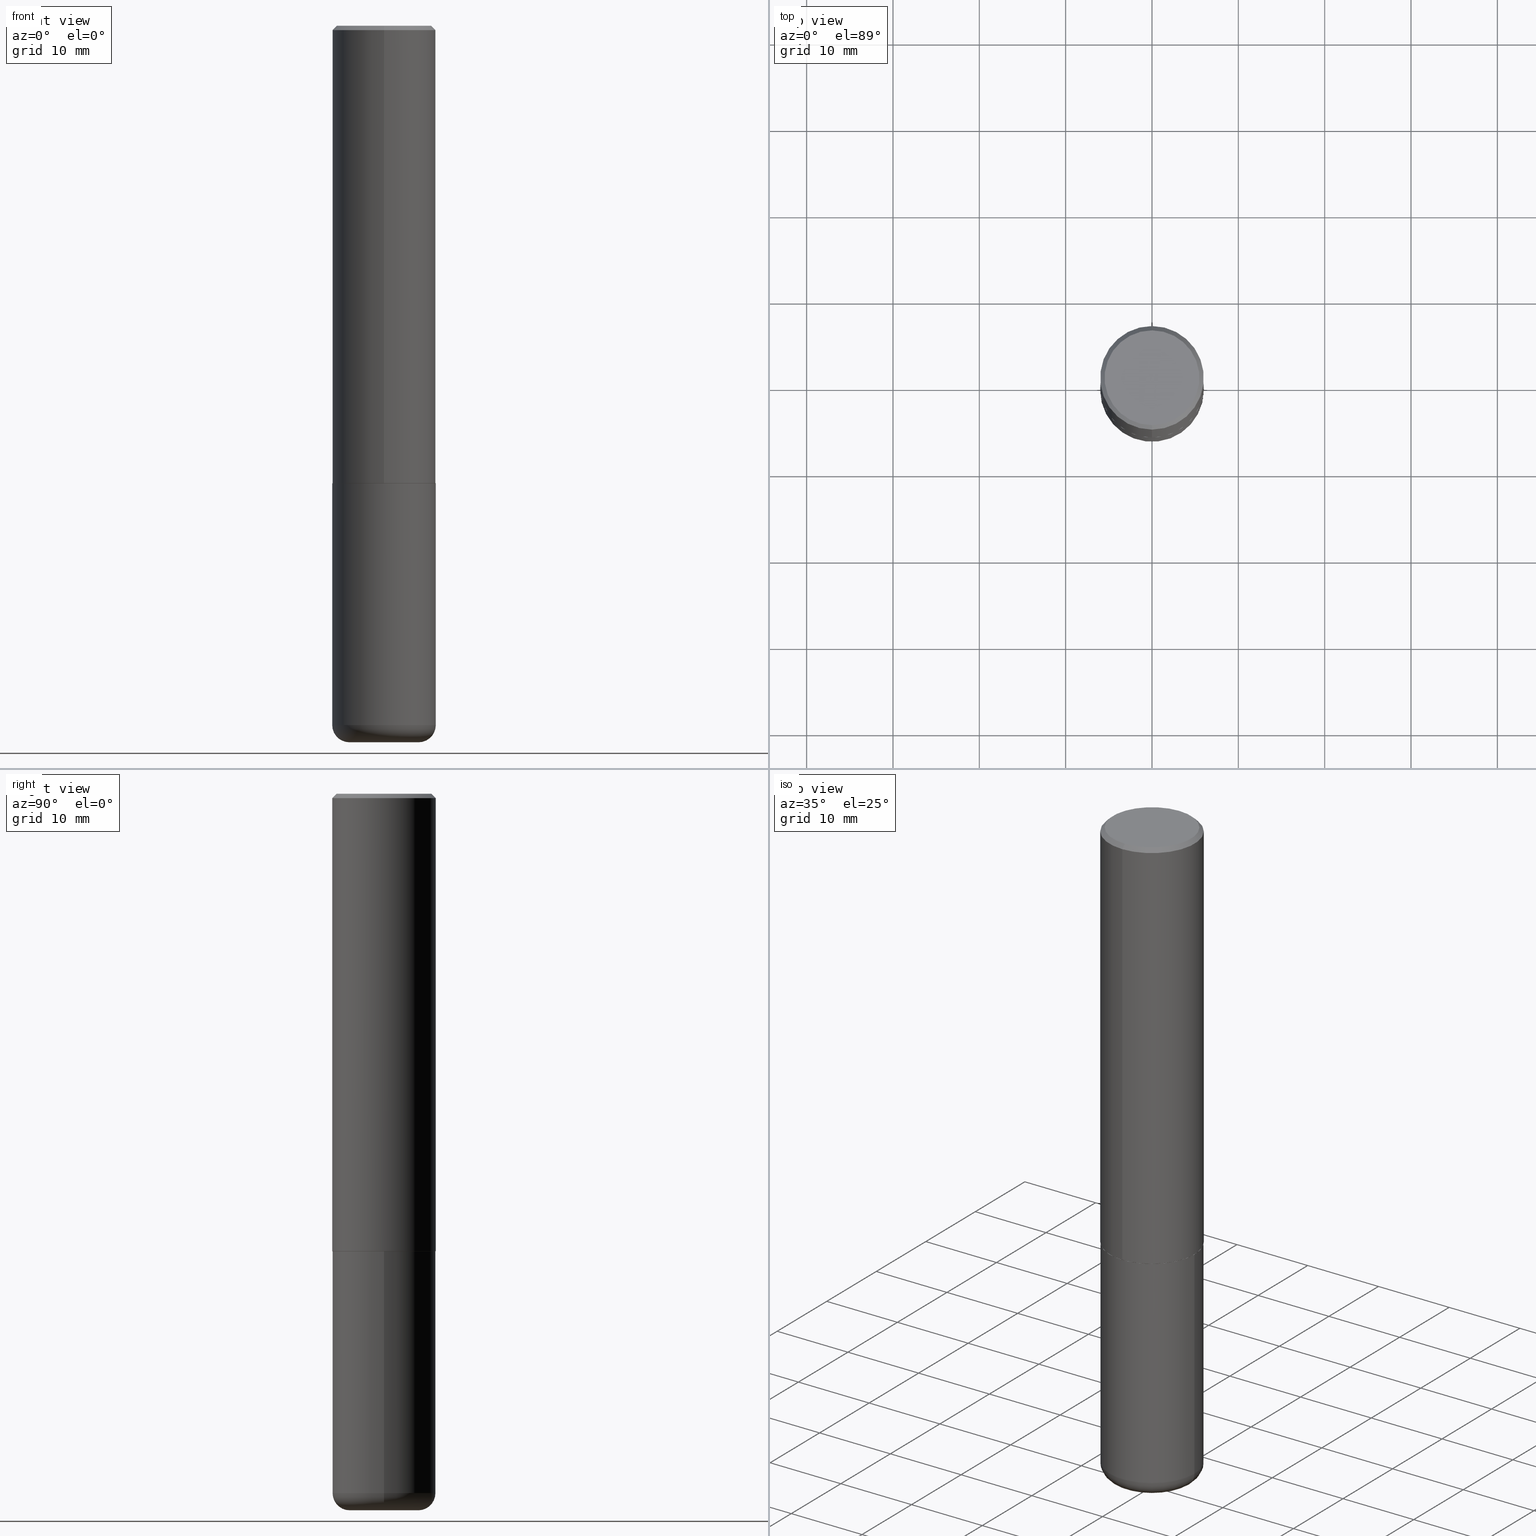
[diagram: canonical four-view strip — front | top / right | iso, engineering-drawing reading convention]
A machine part, canonical four-view strip (front | top / right | iso — engineering-drawing reading convention). The complete STEP part file that produces these views, byte-faithful:
ISO-10303-21;
HEADER;
FILE_DESCRIPTION (( 'STEP AP203' ),
    '1' );
FILE_NAME ('74687.STEP',
    '2024-05-02T19:13:55',
    ( '' ),
    ( '' ),
    'SwSTEP 2.0',
    'SolidWorks 2023',
    '' );
FILE_SCHEMA (( 'CONFIG_CONTROL_DESIGN' ));
ENDSEC;

DATA;
#1 = DIRECTION ( 'NONE',  ( -2.445468806185136597E-29, 3.491481338843145583E-15, 1.000000000000000000 ) ) ;
#2 = COORDINATED_UNIVERSAL_TIME_OFFSET ( 5, 0, .BEHIND. ) ;
#3 = ORIENTED_EDGE ( 'NONE', *, *, #260, .T. ) ;
#4 = EDGE_LOOP ( 'NONE', ( #393, #316, #403, #396 ) ) ;
#5 = DATE_AND_TIME ( #89, #52 ) ;
#6 = AXIS2_PLACEMENT_3D ( 'NONE', #250, #386, #7 ) ;
#7 = DIRECTION ( 'NONE',  ( -1.000000000000000000, 7.105427357600997914E-15, 0.000000000000000000 ) ) ;
#8 = AXIS2_PLACEMENT_3D ( 'NONE', #339, #281, #121 ) ;
#9 = PERSON_AND_ORGANIZATION_ROLE ( 'design_supplier' ) ;
#10 = PERSON_AND_ORGANIZATION_ROLE ( 'creator' ) ;
#11 = ADVANCED_FACE ( 'NONE', ( #333 ), #129, .T. ) ;
#12 = APPROVAL_PERSON_ORGANIZATION ( #324, #245, #285 ) ;
#13 = CLOSED_SHELL ( 'NONE', ( #133, #341, #388, #231, #143, #43 ) ) ;
#14 = ORIENTED_EDGE ( 'NONE', *, *, #325, .F. ) ;
#15 = CC_DESIGN_PERSON_AND_ORGANIZATION_ASSIGNMENT ( #252, #256, ( #136 ) ) ;
#16 = AXIS2_PLACEMENT_3D ( 'NONE', #174, #20, #178 ) ;
#17 = ORGANIZATION ( 'UNSPECIFIED', 'UNSPECIFIED', '' ) ;
#18 = CARTESIAN_POINT ( 'NONE',  ( 1.678301941865383018E-15, 0.2361999999999929711, -2.085600000000000787 ) ) ;
#19 = CARTESIAN_POINT ( 'NONE',  ( 0.000000000000000000, 0.000000000000000000, 0.000000000000000000 ) ) ;
#20 = DIRECTION ( 'NONE',  ( -2.445860723718028373E-29, 3.490920090629483706E-15, 1.000000000000000000 ) ) ;
#21 = LINE ( 'NONE', #138, #230 ) ;
#22 = CIRCLE ( 'NONE', #6, 0.07869999999999993667 ) ;
#23 = DIRECTION ( 'NONE',  ( 1.000000000000000000, -6.982962677686265133E-15, 0.000000000000000000 ) ) ;
#24 = AXIS2_PLACEMENT_3D ( 'NONE', #148, #310, #374 ) ;
#25 = CYLINDRICAL_SURFACE ( 'NONE', #170, 0.2362000000000000766 ) ;
#26 = EDGE_CURVE ( 'NONE', #367, #370, #254, .T. ) ;
#27 = FACE_OUTER_BOUND ( 'NONE', #271, .T. ) ;
#28 = VERTEX_POINT ( 'NONE', #93 ) ;
#29 = CC_DESIGN_APPROVAL ( #276, ( #159 ) ) ;
#30 = APPROVAL_STATUS ( 'not_yet_approved' ) ;
#31 = PERSON_AND_ORGANIZATION ( #124, #17 ) ;
#32 = CALENDAR_DATE ( 2024, 2, 5 ) ;
#33 = AXIS2_PLACEMENT_3D ( 'NONE', #294, #295, #314 ) ;
#34 = CIRCLE ( 'NONE', #308, 0.2161999999999997535 ) ;
#35 = PERSON_AND_ORGANIZATION ( #124, #17 ) ;
#36 = EDGE_CURVE ( 'NONE', #322, #167, #317, .T. ) ;
#37 = ADVANCED_FACE ( 'NONE', ( #155 ), #346, .T. ) ;
#38 = AXIS2_PLACEMENT_3D ( 'NONE', #225, #195, #315 ) ;
#39 = ADVANCED_FACE ( 'NONE', ( #218 ), #407, .F. ) ;
#40 = AXIS2_PLACEMENT_3D ( 'NONE', #48, #1, #90 ) ;
#41 = VERTEX_POINT ( 'NONE', #75 ) ;
#42 = CARTESIAN_POINT ( 'NONE',  ( 7.798600022924401307E-29, -1.113433398957079310E-14, -3.189000000000000501 ) ) ;
#43 = ADVANCED_FACE ( 'NONE', ( #243 ), #83, .T. ) ;
#44 = VERTEX_POINT ( 'NONE', #146 ) ;
#45 = CARTESIAN_POINT ( 'NONE',  ( 5.101087125386319798E-29, -7.280662941016851690E-15, -2.085599999999999898 ) ) ;
#46 = CARTESIAN_POINT ( 'NONE',  ( -1.649375784469446630E-15, -0.2362000000000075151, -2.085599999999999010 ) ) ;
#47 = DIRECTION ( 'NONE',  ( -2.445860723718028373E-29, 3.490920090629483706E-15, 1.000000000000000000 ) ) ;
#48 = CARTESIAN_POINT ( 'NONE',  ( 0.000000000000000000, 0.000000000000000000, 0.000000000000000000 ) ) ;
#49 = DIRECTION ( 'NONE',  ( -6.982962677686266711E-15, -1.000000000000000000, 3.490920090629483706E-15 ) ) ;
#50 = AXIS2_PLACEMENT_3D ( 'NONE', #249, #88, #221 ) ;
#51 = EDGE_CURVE ( 'NONE', #104, #100, #290, .T. ) ;
#52 = LOCAL_TIME ( 15, 13, 55.00000000000000000, #160 ) ;
#53 = VERTEX_POINT ( 'NONE', #57 ) ;
#54 = CARTESIAN_POINT ( 'NONE',  ( 7.991058417971171713E-29, -1.140911357093774644E-14, -3.267700000000000049 ) ) ;
#55 = AXIS2_PLACEMENT_3D ( 'NONE', #96, #200, #166 ) ;
#56 = FACE_OUTER_BOUND ( 'NONE', #347, .T. ) ;
#57 = CARTESIAN_POINT ( 'NONE',  ( 0.2361999999999999655, -1.278370977404028805E-14, -3.189000000000000501 ) ) ;
#58 = DIRECTION ( 'NONE',  ( -2.445468806185136597E-29, 3.491481338843145583E-15, 1.000000000000000000 ) ) ;
#59 = DIRECTION ( 'NONE',  ( -2.445860723718028373E-29, 3.490920090629483706E-15, 1.000000000000000000 ) ) ;
#60 = ORIENTED_EDGE ( 'NONE', *, *, #325, .T. ) ;
#61 = AXIS2_PLACEMENT_3D ( 'NONE', #241, #383, #237 ) ;
#62 = APPROVAL_ROLE ( '' ) ;
#63 = DATE_AND_TIME ( #197, #263 ) ;
#64 = DIRECTION ( 'NONE',  ( 2.445860723718028373E-29, -3.490920090629483706E-15, -1.000000000000000000 ) ) ;
#65 = EDGE_CURVE ( 'NONE', #28, #377, #181, .T. ) ;
#66 = VECTOR ( 'NONE', #349, 39.37007874015748143 ) ;
#67 = EDGE_CURVE ( 'NONE', #350, #239, #202, .T. ) ;
#68 = DIMENSIONAL_EXPONENTS ( 1.000000000000000000, 0.000000000000000000, 0.000000000000000000, 0.000000000000000000, 0.000000000000000000, 0.000000000000000000, 0.000000000000000000 ) ;
#69 = VECTOR ( 'NONE', #164, 39.37007874015748143 ) ;
#70 = LOCAL_TIME ( 15, 13, 55.00000000000000000, #193 ) ;
#71 = ORIENTED_EDGE ( 'NONE', *, *, #26, .F. ) ;
#72 = EDGE_CURVE ( 'NONE', #100, #104, #323, .T. ) ;
#73 = DIRECTION ( 'NONE',  ( -6.982962677686265922E-15, -1.000000000000000000, 3.490920090629484100E-15 ) ) ;
#74 = ORIENTED_EDGE ( 'NONE', *, *, #298, .T. ) ;
#75 = CARTESIAN_POINT ( 'NONE',  ( 1.579546157692632438E-15, 0.2161999999999997535, -6.054603283043727914E-16 ) ) ;
#76 = LINE ( 'NONE', #211, #288 ) ;
#77 = LINE ( 'NONE', #185, #144 ) ;
#78 = EDGE_CURVE ( 'NONE', #104, #44, #76, .T. ) ;
#79 = DIRECTION ( 'NONE',  ( 6.982962677686265922E-15, 1.000000000000000000, -3.487819265831412533E-15 ) ) ;
#80 = LINE ( 'NONE', #274, #81 ) ;
#81 = VECTOR ( 'NONE', #208, 39.37007874015748854 ) ;
#82 = ORIENTED_EDGE ( 'NONE', *, *, #382, .T. ) ;
#83 = PLANE ( 'NONE',  #216 ) ;
#84 = DIRECTION ( 'NONE',  ( 1.000000000000000000, -6.982962677686266711E-15, 4.883557194083113462E-29 ) ) ;
#85 = TOROIDAL_SURFACE ( 'NONE', #399, 0.1575000000000000011, 0.07869999999999995055 ) ;
#86 = ORIENTED_EDGE ( 'NONE', *, *, #260, .F. ) ;
#87 = FACE_OUTER_BOUND ( 'NONE', #334, .T. ) ;
#88 = DIRECTION ( 'NONE',  ( -2.445860723718028373E-29, 3.490920090629483706E-15, 1.000000000000000000 ) ) ;
#89 = CALENDAR_DATE ( 2024, 2, 5 ) ;
#90 = DIRECTION ( 'NONE',  ( 1.000000000000000000, -6.982962677686266711E-15, 4.876176775795936353E-29 ) ) ;
#91 = CC_DESIGN_APPROVAL ( #384, ( #223 ) ) ;
#92 = DATE_AND_TIME ( #363, #355 ) ;
#93 = CARTESIAN_POINT ( 'NONE',  ( 0.2361999999999999933, -8.934700746099602364E-15, -2.086600000000000232 ) ) ;
#94 = APPROVAL_DATE_TIME ( #5, #245 ) ;
#95 = EDGE_CURVE ( 'NONE', #370, #367, #134, .T. ) ;
#96 = CARTESIAN_POINT ( 'NONE',  ( 0.000000000000000000, 0.000000000000000000, 0.000000000000000000 ) ) ;
#97 = PERSON_AND_ORGANIZATION ( #124, #17 ) ;
#98 = CC_DESIGN_PERSON_AND_ORGANIZATION_ASSIGNMENT ( #97, #313, ( #395 ) ) ;
#99 = CARTESIAN_POINT ( 'NONE',  ( 0.000000000000000000, 0.000000000000000000, 0.000000000000000000 ) ) ;
#100 = VERTEX_POINT ( 'NONE', #46 ) ;
#101 = CONICAL_SURFACE ( 'NONE', #246, 0.2361999999999999378, 0.7853981633974473908 ) ;
#102 = ORIENTED_EDGE ( 'NONE', *, *, #275, .F. ) ;
#103 = DATE_AND_TIME ( #130, #70 ) ;
#104 = VERTEX_POINT ( 'NONE', #18 ) ;
#105 = PRODUCT_RELATED_PRODUCT_CATEGORY ( 'detail', '', ( #136 ) ) ;
#106 = ORIENTED_EDGE ( 'NONE', *, *, #78, .T. ) ;
#107 = DIRECTION ( 'NONE',  ( -6.982962677686265133E-15, -1.000000000000000000, 3.484499991918703113E-15 ) ) ;
#108 = CIRCLE ( 'NONE', #289, 0.07869999999999993667 ) ;
#109 = EDGE_LOOP ( 'NONE', ( #192, #82, #400, #233 ) ) ;
#110 = VECTOR ( 'NONE', #147, 39.37007874015748143 ) ;
#111 = CARTESIAN_POINT ( 'NONE',  ( -0.1575000000000000011, -9.873020404910514350E-15, -3.267700000000000049 ) ) ;
#112 = EDGE_CURVE ( 'NONE', #41, #44, #179, .T. ) ;
#113 = FACE_OUTER_BOUND ( 'NONE', #309, .T. ) ;
#114 = FACE_OUTER_BOUND ( 'NONE', #4, .T. ) ;
#115 = ORIENTED_EDGE ( 'NONE', *, *, #275, .T. ) ;
#116 = CARTESIAN_POINT ( 'NONE',  ( 7.991058417971171713E-29, -1.140911357093774644E-14, -3.267700000000000049 ) ) ;
#117 = CARTESIAN_POINT ( 'NONE',  ( -0.2361999999999999933, -7.531527533735093865E-15, -2.086600000000000232 ) ) ;
#118 = CONICAL_SURFACE ( 'NONE', #24, 0.2351999999999999924, 0.7853981633973970977 ) ;
#119 = EDGE_LOOP ( 'NONE', ( #278, #139, #135, #336 ) ) ;
#120 = PLANE ( 'NONE',  #61 ) ;
#121 = DIRECTION ( 'NONE',  ( 1.000000000000000000, -6.982962677686265133E-15, 0.000000000000000000 ) ) ;
#122 = APPLICATION_PROTOCOL_DEFINITION ( 'international standard', 'config_control_design', 1994, #376 ) ;
#123 = FACE_OUTER_BOUND ( 'NONE', #109, .T. ) ;
#124 = PERSON ( 'UNSPECIFIED', 'UNSPECIFIED', 'UNSPECIFIED', ('UNSPECIFIED'), ('UNSPECIFIED'), ('UNSPECIFIED') ) ;
#125 = MECHANICAL_CONTEXT ( 'NONE', #128, 'mechanical' ) ;
#126 = EDGE_CURVE ( 'NONE', #322, #41, #34, .T. ) ;
#127 = AXIS2_PLACEMENT_3D ( 'NONE', #54, #242, #372 ) ;
#128 = APPLICATION_CONTEXT ( 'configuration controlled 3d designs of mechanical parts and assemblies' ) ;
#129 = CYLINDRICAL_SURFACE ( 'NONE', #55, 0.2362000000000000766 ) ;
#130 = CALENDAR_DATE ( 2024, 2, 5 ) ;
#131 = APPROVAL_DATE_TIME ( #103, #276 ) ;
#132 = CIRCLE ( 'NONE', #183, 0.2361999999999999933 ) ;
#133 = ADVANCED_FACE ( 'NONE', ( #113 ), #137, .T. ) ;
#134 = CIRCLE ( 'NONE', #127, 0.1575000000000000011 ) ;
#135 = ORIENTED_EDGE ( 'NONE', *, *, #72, .F. ) ;
#136 = PRODUCT ( '74687', '74687', '', ( #125 ) ) ;
#137 = CYLINDRICAL_SURFACE ( 'NONE', #267, 0.2361999999999999933 ) ;
#138 = CARTESIAN_POINT ( 'NONE',  ( -1.642392821791758643E-15, -0.2352000000000072644, -2.086599999999999344 ) ) ;
#139 = ORIENTED_EDGE ( 'NONE', *, *, #264, .T. ) ;
#140 = CARTESIAN_POINT ( 'NONE',  ( 5.103532986110038747E-29, -7.284153861107480187E-15, -2.086600000000000232 ) ) ;
#142 = FACE_OUTER_BOUND ( 'NONE', #328, .T. ) ;
#141 = CC_DESIGN_SECURITY_CLASSIFICATION ( #159, ( #223 ) ) ;
#143 = ADVANCED_FACE ( 'NONE', ( #207 ), #85, .T. ) ;
#144 = VECTOR ( 'NONE', #180, 39.37007874015748143 ) ;
#145 = MANIFOLD_SOLID_BREP ( 'Body-Move/Copy2[1]', #13 ) ;
#146 = CARTESIAN_POINT ( 'NONE',  ( 1.649375784469495934E-15, 0.2361999999999998545, -0.02000000000000087472 ) ) ;
#147 = DIRECTION ( 'NONE',  ( 4.937700262164543309E-15, 0.7071067811865444641, -0.7071067811865506814 ) ) ;
#148 = CARTESIAN_POINT ( 'NONE',  ( 5.103532986110039868E-29, -7.284153861107481765E-15, -2.086600000000000232 ) ) ;
#149 = FACE_OUTER_BOUND ( 'NONE', #119, .T. ) ;
#150 = ORIENTED_EDGE ( 'NONE', *, *, #382, .F. ) ;
#151 = DIRECTION ( 'NONE',  ( -6.982962677686265922E-15, -1.000000000000000000, 3.487819265831412533E-15 ) ) ;
#152 = EDGE_CURVE ( 'NONE', #304, #377, #169, .T. ) ;
#153 = APPROVAL_PERSON_ORGANIZATION ( #232, #384, #358 ) ;
#154 = DIRECTION ( 'NONE',  ( -6.982962677686265922E-15, -1.000000000000000000, 3.469747663417773452E-15 ) ) ;
#155 = FACE_OUTER_BOUND ( 'NONE', #300, .T. ) ;
#156 = SECURITY_CLASSIFICATION_LEVEL ( 'unclassified' ) ;
#157 = CARTESIAN_POINT ( 'NONE',  ( -1.620449627073634487E-15, -0.2361999999999999933, -0.01999999999999922673 ) ) ;
#158 = CARTESIAN_POINT ( 'NONE',  ( 5.103532986110039868E-29, -7.284153861107481765E-15, -2.086600000000000232 ) ) ;
#159 = SECURITY_CLASSIFICATION ( '', '', #156 ) ;
#160 = COORDINATED_UNIVERSAL_TIME_OFFSET ( 5, 0, .BEHIND. ) ;
#161 = VECTOR ( 'NONE', #335, 39.37007874015748143 ) ;
#162 = CARTESIAN_POINT ( 'NONE',  ( 4.891721447436068727E-31, -6.981840181258985900E-17, -0.02000000000000005246 ) ) ;
#163 = PERSON_AND_ORGANIZATION_ROLE ( 'classification_officer' ) ;
#164 = DIRECTION ( 'NONE',  ( -4.851104656540959542E-15, -0.7071067811865493491, -0.7071067811865457964 ) ) ;
#165 = DIRECTION ( 'NONE',  ( -2.445468806185136597E-29, 3.491481338843145583E-15, 1.000000000000000000 ) ) ;
#166 = DIRECTION ( 'NONE',  ( -6.982962677686265922E-15, -1.000000000000000000, 3.490920090629483706E-15 ) ) ;
#167 = VERTEX_POINT ( 'NONE', #157 ) ;
#168 = SHAPE_DEFINITION_REPRESENTATION ( #173, #327 ) ;
#169 = LINE ( 'NONE', #402, #161 ) ;
#170 = AXIS2_PLACEMENT_3D ( 'NONE', #19, #378, #213 ) ;
#171 = ORIENTED_EDGE ( 'NONE', *, *, #36, .F. ) ;
#172 = CARTESIAN_POINT ( 'NONE',  ( 5.102715210985906276E-29, -7.285324961630107416E-15, -2.086600000000000232 ) ) ;
#173 = PRODUCT_DEFINITION_SHAPE ( 'NONE', 'NONE',  #395 ) ;
#174 = CARTESIAN_POINT ( 'NONE',  ( 5.101087125386319798E-29, -7.280662941016851690E-15, -2.085599999999999898 ) ) ;
#175 = DIRECTION ( 'NONE',  ( -6.982962677686265922E-15, -1.000000000000000000, 3.487819265831412533E-15 ) ) ;
#176 = DIRECTION ( 'NONE',  ( 6.982962677686265922E-15, 1.000000000000000000, -3.487819265831412533E-15 ) ) ;
#177 = ORIENTED_EDGE ( 'NONE', *, *, #67, .F. ) ;
#178 = DIRECTION ( 'NONE',  ( -6.982962677686265922E-15, -1.000000000000000000, 3.469747663417773452E-15 ) ) ;
#179 = LINE ( 'NONE', #302, #110 ) ;
#180 = DIRECTION ( 'NONE',  ( -2.445860723718028093E-29, 3.490920090629484100E-15, 1.000000000000000000 ) ) ;
#181 = CIRCLE ( 'NONE', #8, 0.2361999999999999933 ) ;
#182 = LOCAL_TIME ( 15, 13, 55.00000000000000000, #2 ) ;
#183 = AXIS2_PLACEMENT_3D ( 'NONE', #172, #410, #23 ) ;
#184 = DIRECTION ( 'NONE',  ( 6.982962677686265922E-15, 1.000000000000000000, -3.490920090629484100E-15 ) ) ;
#185 = CARTESIAN_POINT ( 'NONE',  ( -1.649375784469496525E-15, -0.2362000000000000766, 8.245553254066843076E-16 ) ) ;
#186 = ORIENTED_EDGE ( 'NONE', *, *, #65, .F. ) ;
#187 = DIRECTION ( 'NONE',  ( -2.445468806185136597E-29, 3.491481338843145583E-15, 1.000000000000000000 ) ) ;
#188 = EDGE_CURVE ( 'NONE', #304, #53, #381, .T. ) ;
#189 = ADVANCED_FACE ( 'NONE', ( #123 ), #201, .T. ) ;
#190 = APPLICATION_PROTOCOL_DEFINITION ( 'international standard', 'config_control_design', 1994, #128 ) ;
#191 = CLOSED_SHELL ( 'NONE', ( #331, #353, #37, #204, #11, #189, #398, #39 ) ) ;
#192 = ORIENTED_EDGE ( 'NONE', *, *, #264, .F. ) ;
#193 = COORDINATED_UNIVERSAL_TIME_OFFSET ( 5, 0, .BEHIND. ) ;
#194 = EDGE_CURVE ( 'NONE', #367, #304, #22, .T. ) ;
#195 = DIRECTION ( 'NONE',  ( 0.000000000000000000, 0.000000000000000000, 1.000000000000000000 ) ) ;
#196 = EDGE_LOOP ( 'NONE', ( #220, #203, #330, #293 ) ) ;
#197 = CALENDAR_DATE ( 2024, 2, 5 ) ;
#198 = AXIS2_PLACEMENT_3D ( 'NONE', #158, #59, #280 ) ;
#199 = PERSON_AND_ORGANIZATION ( #124, #17 ) ;
#200 = DIRECTION ( 'NONE',  ( -2.445860723718028373E-29, 3.490920090629483706E-15, 1.000000000000000000 ) ) ;
#201 = CONICAL_SURFACE ( 'NONE', #198, 0.2351999999999999924, 0.7853981633973970977 ) ;
#202 = CIRCLE ( 'NONE', #50, 0.2351999999999999924 ) ;
#203 = ORIENTED_EDGE ( 'NONE', *, *, #26, .T. ) ;
#204 = ADVANCED_FACE ( 'NONE', ( #320 ), #101, .T. ) ;
#205 = DIRECTION ( 'NONE',  ( 1.000000000000000000, -6.982962677686266711E-15, 4.876176775795936353E-29 ) ) ;
#206 = ORIENTED_EDGE ( 'NONE', *, *, #413, .F. ) ;
#207 = FACE_OUTER_BOUND ( 'NONE', #196, .T. ) ;
#208 = DIRECTION ( 'NONE',  ( 5.024295867787803643E-15, 0.7071067811865135999, 0.7071067811865812125 ) ) ;
#209 = EDGE_LOOP ( 'NONE', ( #390, #71 ) ) ;
#210 = CARTESIAN_POINT ( 'NONE',  ( -3.651097613894796322E-45, 5.211126655576527214E-31, 1.492765952897207328E-16 ) ) ;
#211 = CARTESIAN_POINT ( 'NONE',  ( 1.678301941865356789E-15, 0.2362000000000000766, -8.245553254066843076E-16 ) ) ;
#212 = DIRECTION ( 'NONE',  ( 1.000000000000000000, -6.982962677686265133E-15, 0.000000000000000000 ) ) ;
#213 = DIRECTION ( 'NONE',  ( -6.982962677686265922E-15, -1.000000000000000000, 3.490920090629483706E-15 ) ) ;
#214 = AXIS2_PLACEMENT_3D ( 'NONE', #284, #251, #79 ) ;
#215 = CIRCLE ( 'NONE', #406, 0.2351999999999999924 ) ;
#216 = AXIS2_PLACEMENT_3D ( 'NONE', #116, #415, #348 ) ;
#217 = CARTESIAN_POINT ( 'NONE',  ( -1.642392821791758643E-15, -0.2352000000000072644, -2.086599999999999344 ) ) ;
#218 = FACE_OUTER_BOUND ( 'NONE', #248, .T. ) ;
#219 = PLANE ( 'NONE',  #401 ) ;
#220 = ORIENTED_EDGE ( 'NONE', *, *, #194, .F. ) ;
#221 = DIRECTION ( 'NONE',  ( -6.982962677686265133E-15, -1.000000000000000000, 3.484499991918703113E-15 ) ) ;
#222 = DATE_TIME_ROLE ( 'creation_date' ) ;
#223 = PRODUCT_DEFINITION_FORMATION_WITH_SPECIFIED_SOURCE ( 'ANY', '', #136, .NOT_KNOWN. ) ;
#224 = TOROIDAL_SURFACE ( 'NONE', #389, 0.1575000000000000011, 0.07869999999999995055 ) ;
#225 = CARTESIAN_POINT ( 'NONE',  ( 0.000000000000000000, 0.000000000000000000, 0.000000000000000000 ) ) ;
#226 = APPROVAL_STATUS ( 'not_yet_approved' ) ;
#227 = ORIENTED_EDGE ( 'NONE', *, *, #188, .T. ) ;
#228 = LENGTH_MEASURE_WITH_UNIT ( LENGTH_MEASURE( 0.02539999999999999897 ), #392 );
#229 = ORIENTED_EDGE ( 'NONE', *, *, #152, .F. ) ;
#230 = VECTOR ( 'NONE', #412, 39.37007874015748143 ) ;
#231 = ADVANCED_FACE ( 'NONE', ( #142 ), #375, .T. ) ;
#232 = PERSON_AND_ORGANIZATION ( #124, #17 ) ;
#233 = ORIENTED_EDGE ( 'NONE', *, *, #51, .F. ) ;
#234 = ORIENTED_EDGE ( 'NONE', *, *, #318, .F. ) ;
#235 = ORIENTED_EDGE ( 'NONE', *, *, #65, .T. ) ;
#236 = EDGE_CURVE ( 'NONE', #41, #322, #253, .T. ) ;
#237 = DIRECTION ( 'NONE',  ( -1.000000000000000000, 6.982962677686265922E-15, -4.876176775795935793E-29 ) ) ;
#238 = CIRCLE ( 'NONE', #297, 0.2361999999999999378 ) ;
#239 = VERTEX_POINT ( 'NONE', #307 ) ;
#240 = DIRECTION ( 'NONE',  ( -2.445860723718028093E-29, 3.490920090629484100E-15, 1.000000000000000000 ) ) ;
#241 = CARTESIAN_POINT ( 'NONE',  ( 5.102715210985906276E-29, -7.285324961630107416E-15, -2.086600000000000232 ) ) ;
#242 = DIRECTION ( 'NONE',  ( -2.445468806185136597E-29, 3.491481338843145583E-15, 1.000000000000000000 ) ) ;
#243 = FACE_OUTER_BOUND ( 'NONE', #209, .T. ) ;
#244 = CARTESIAN_POINT ( 'NONE',  ( 7.798600022924401307E-29, -1.113433398957079310E-14, -3.189000000000000501 ) ) ;
#245 = APPROVAL ( #30, 'UNSPECIFIED' ) ;
#246 = AXIS2_PLACEMENT_3D ( 'NONE', #162, #64, #176 ) ;
#247 = CARTESIAN_POINT ( 'NONE',  ( 5.103532986110039868E-29, -7.284153861107481765E-15, -2.086600000000000232 ) ) ;
#248 = EDGE_LOOP ( 'NONE', ( #338, #408 ) ) ;
#249 = CARTESIAN_POINT ( 'NONE',  ( 5.103532986110039868E-29, -7.284153861107481765E-15, -2.086600000000000232 ) ) ;
#250 = CARTESIAN_POINT ( 'NONE',  ( -0.1575000000000000011, -1.001522918074863550E-14, -3.189000000000000501 ) ) ;
#251 = DIRECTION ( 'NONE',  ( 2.445860723718028373E-29, -3.490920090629483706E-15, -1.000000000000000000 ) ) ;
#252 = PERSON_AND_ORGANIZATION ( #124, #17 ) ;
#253 = CIRCLE ( 'NONE', #343, 0.2161999999999997535 ) ;
#254 = CIRCLE ( 'NONE', #364, 0.1575000000000000011 ) ;
#255 = CIRCLE ( 'NONE', #321, 0.2361999999999999933 ) ;
#256 = PERSON_AND_ORGANIZATION_ROLE ( 'design_owner' ) ;
#257 = DIRECTION ( 'NONE',  ( -2.445468806185136597E-29, 3.491481338843145583E-15, 1.000000000000000000 ) ) ;
#258 = PERSON_AND_ORGANIZATION ( #124, #17 ) ;
#259 = UNCERTAINTY_MEASURE_WITH_UNIT (LENGTH_MEASURE( 1.000000000000000082E-05 ), #387, 'distance_accuracy_value', 'NONE');
#260 = EDGE_CURVE ( 'NONE', #44, #167, #356, .T. ) ;
#261 = ORIENTED_EDGE ( 'NONE', *, *, #126, .F. ) ;
#262 = CC_DESIGN_PERSON_AND_ORGANIZATION_ASSIGNMENT ( #199, #9, ( #223 ) ) ;
#263 = LOCAL_TIME ( 15, 13, 55.00000000000000000, #319 ) ;
#264 = EDGE_CURVE ( 'NONE', #239, #104, #80, .T. ) ;
#265 = ORIENTED_EDGE ( 'NONE', *, *, #413, .T. ) ;
#266 = AXIS2_PLACEMENT_3D ( 'NONE', #303, #352, #151 ) ;
#267 = AXIS2_PLACEMENT_3D ( 'NONE', #99, #332, #205 ) ;
#268 = CC_DESIGN_DATE_AND_TIME_ASSIGNMENT ( #92, #222, ( #395 ) ) ;
#269 = ORIENTED_EDGE ( 'NONE', *, *, #318, .T. ) ;
#270 = LINE ( 'NONE', #340, #66 ) ;
#271 = EDGE_LOOP ( 'NONE', ( #235, #60 ) ) ;
#272 = CC_DESIGN_APPROVAL ( #245, ( #395 ) ) ;
#273 = CARTESIAN_POINT ( 'NONE',  ( -3.651097613894796322E-45, 5.211126655576527214E-31, 1.492765952897207328E-16 ) ) ;
#274 = CARTESIAN_POINT ( 'NONE',  ( 1.671196514507806268E-15, 0.2351999999999927204, -2.086600000000001121 ) ) ;
#275 = EDGE_CURVE ( 'NONE', #53, #28, #270, .T. ) ;
#276 = APPROVAL ( #226, 'UNSPECIFIED' ) ;
#277 = CARTESIAN_POINT ( 'NONE',  ( 0.1575000000000000011, -1.250893019267333313E-14, -3.267700000000000049 ) ) ;
#278 = ORIENTED_EDGE ( 'NONE', *, *, #67, .T. ) ;
#279 = CARTESIAN_POINT ( 'NONE',  ( -1.551844647095918761E-15, -0.2161999999999997535, 9.040135188838143063E-16 ) ) ;
#280 = DIRECTION ( 'NONE',  ( -6.982962677686265133E-15, -1.000000000000000000, 3.484499991918703113E-15 ) ) ;
#281 = DIRECTION ( 'NONE',  ( -2.445468806185136597E-29, 3.491481338843145583E-15, 1.000000000000000000 ) ) ;
#282 = APPROVAL_DATE_TIME ( #63, #384 ) ;
#283 = MANIFOLD_SOLID_BREP ( 'Body-Move/Copy2[2]', #191 ) ;
#284 = CARTESIAN_POINT ( 'NONE',  ( 4.891721447436068727E-31, -6.981840181258985900E-17, -0.02000000000000005246 ) ) ;
#285 = APPROVAL_ROLE ( '' ) ;
#286 = ORIENTED_EDGE ( 'NONE', *, *, #112, .T. ) ;
#287 =( NAMED_UNIT ( * ) SI_UNIT ( $, .STERADIAN. ) SOLID_ANGLE_UNIT ( ) );
#288 = VECTOR ( 'NONE', #240, 39.37007874015748143 ) ;
#289 = AXIS2_PLACEMENT_3D ( 'NONE', #299, #373, #344 ) ;
#290 = CIRCLE ( 'NONE', #306, 0.2362000000000002431 ) ;
#291 =( NAMED_UNIT ( * ) PLANE_ANGLE_UNIT ( ) SI_UNIT ( $, .RADIAN. ) );
#292 = DATE_AND_TIME ( #32, #182 ) ;
#293 = ORIENTED_EDGE ( 'NONE', *, *, #188, .F. ) ;
#294 = CARTESIAN_POINT ( 'NONE',  ( 7.798600022924401307E-29, -1.113433398957079310E-14, -3.189000000000000501 ) ) ;
#295 = DIRECTION ( 'NONE',  ( -2.445468806185136597E-29, 3.491481338843145583E-15, 1.000000000000000000 ) ) ;
#296 = CARTESIAN_POINT ( 'NONE',  ( 7.991058417971171713E-29, -1.140911357093774644E-14, -3.267700000000000049 ) ) ;
#297 = AXIS2_PLACEMENT_3D ( 'NONE', #337, #47, #175 ) ;
#298 = EDGE_CURVE ( 'NONE', #53, #304, #255, .T. ) ;
#299 = CARTESIAN_POINT ( 'NONE',  ( 0.1575000000000000011, -1.223415061130637979E-14, -3.189000000000000501 ) ) ;
#300 = EDGE_LOOP ( 'NONE', ( #261, #414, #265, #329 ) ) ;
#301 = ORIENTED_EDGE ( 'NONE', *, *, #72, .T. ) ;
#302 = CARTESIAN_POINT ( 'NONE',  ( 1.649375784469495934E-15, 0.2361999999999998545, -0.02000000000000087472 ) ) ;
#303 = CARTESIAN_POINT ( 'NONE',  ( 4.891721447436068727E-31, -6.981840181258985900E-17, -0.02000000000000005246 ) ) ;
#304 = VERTEX_POINT ( 'NONE', #380 ) ;
#305 = DIRECTION ( 'NONE',  ( -2.445860723718028373E-29, 3.490920090629483706E-15, 1.000000000000000000 ) ) ;
#306 = AXIS2_PLACEMENT_3D ( 'NONE', #45, #305, #154 ) ;
#307 = CARTESIAN_POINT ( 'NONE',  ( 1.674749228186607758E-15, 0.2351999999999927204, -2.086600000000001121 ) ) ;
#308 = AXIS2_PLACEMENT_3D ( 'NONE', #273, #409, #411 ) ;
#309 = EDGE_LOOP ( 'NONE', ( #74, #405, #186, #102 ) ) ;
#310 = DIRECTION ( 'NONE',  ( -2.445860723718028373E-29, 3.490920090629483706E-15, 1.000000000000000000 ) ) ;
#311 = CARTESIAN_POINT ( 'NONE',  ( 1.509716530915769140E-15, 0.2161999999999997535, -6.800986259492332687E-16 ) ) ;
#312 = DIRECTION ( 'NONE',  ( -2.445860723718028373E-29, 3.490920090629483706E-15, 1.000000000000000000 ) ) ;
#313 = PERSON_AND_ORGANIZATION_ROLE ( 'creator' ) ;
#314 = DIRECTION ( 'NONE',  ( 1.000000000000000000, -6.982962677686265133E-15, 0.000000000000000000 ) ) ;
#315 = DIRECTION ( 'NONE',  ( 1.000000000000000000, 0.000000000000000000, 0.000000000000000000 ) ) ;
#316 = ORIENTED_EDGE ( 'NONE', *, *, #194, .T. ) ;
#317 = LINE ( 'NONE', #362, #69 ) ;
#318 = EDGE_CURVE ( 'NONE', #100, #167, #77, .T. ) ;
#319 = COORDINATED_UNIVERSAL_TIME_OFFSET ( 5, 0, .BEHIND. ) ;
#320 = FACE_OUTER_BOUND ( 'NONE', #357, .T. ) ;
#321 = AXIS2_PLACEMENT_3D ( 'NONE', #244, #187, #212 ) ;
#322 = VERTEX_POINT ( 'NONE', #279 ) ;
#323 = CIRCLE ( 'NONE', #16, 0.2362000000000002431 ) ;
#324 = PERSON_AND_ORGANIZATION ( #124, #17 ) ;
#325 = EDGE_CURVE ( 'NONE', #377, #28, #132, .T. ) ;
#326 = APPROVAL_PERSON_ORGANIZATION ( #258, #276, #62 ) ;
#327 = ADVANCED_BREP_SHAPE_REPRESENTATION ( '74687', ( #145, #283, #38 ), #345 ) ;
#328 = EDGE_LOOP ( 'NONE', ( #229, #227, #115, #14 ) ) ;
#329 = ORIENTED_EDGE ( 'NONE', *, *, #112, .F. ) ;
#330 = ORIENTED_EDGE ( 'NONE', *, *, #359, .T. ) ;
#331 = ADVANCED_FACE ( 'NONE', ( #149 ), #118, .T. ) ;
#332 = DIRECTION ( 'NONE',  ( -2.445468806185136597E-29, 3.491481338843145583E-15, 1.000000000000000000 ) ) ;
#333 = FACE_OUTER_BOUND ( 'NONE', #365, .T. ) ;
#334 = EDGE_LOOP ( 'NONE', ( #177, #150 ) ) ;
#335 = DIRECTION ( 'NONE',  ( -2.445468806185136877E-29, 3.491481338843145188E-15, 1.000000000000000000 ) ) ;
#336 = ORIENTED_EDGE ( 'NONE', *, *, #368, .F. ) ;
#337 = CARTESIAN_POINT ( 'NONE',  ( 4.891721447436068727E-31, -6.981840181258985900E-17, -0.02000000000000005246 ) ) ;
#338 = ORIENTED_EDGE ( 'NONE', *, *, #236, .T. ) ;
#339 = CARTESIAN_POINT ( 'NONE',  ( 5.102715210985906276E-29, -7.285324961630107416E-15, -2.086600000000000232 ) ) ;
#340 = CARTESIAN_POINT ( 'NONE',  ( 0.2361999999999999933, -1.649375784469496131E-15, 1.151752954443000088E-29 ) ) ;
#341 = ADVANCED_FACE ( 'NONE', ( #114 ), #224, .T. ) ;
#342 = DIRECTION ( 'NONE',  ( -2.445860723718028373E-29, 3.490920090629483706E-15, 1.000000000000000000 ) ) ;
#343 = AXIS2_PLACEMENT_3D ( 'NONE', #210, #342, #49 ) ;
#344 = DIRECTION ( 'NONE',  ( 1.000000000000000000, -6.982962677686275388E-15, 0.000000000000000000 ) ) ;
#345 =( GEOMETRIC_REPRESENTATION_CONTEXT ( 3 ) GLOBAL_UNCERTAINTY_ASSIGNED_CONTEXT ( ( #259 ) ) GLOBAL_UNIT_ASSIGNED_CONTEXT ( ( #387, #291, #287 ) ) REPRESENTATION_CONTEXT ( 'NONE', 'WORKASPACE' ) );
#346 = CONICAL_SURFACE ( 'NONE', #214, 0.2361999999999999378, 0.7853981633974473908 ) ;
#347 = EDGE_LOOP ( 'NONE', ( #301, #106, #206, #234 ) ) ;
#348 = DIRECTION ( 'NONE',  ( -1.000000000000000000, 6.982962677686265922E-15, -4.876176775795935793E-29 ) ) ;
#349 = DIRECTION ( 'NONE',  ( -2.445468806185136877E-29, 3.491481338843145188E-15, 1.000000000000000000 ) ) ;
#350 = VERTEX_POINT ( 'NONE', #217 ) ;
#351 = DIRECTION ( 'NONE',  ( 2.445860723718027813E-29, -3.490920090629484100E-15, -1.000000000000000000 ) ) ;
#352 = DIRECTION ( 'NONE',  ( -2.445860723718028373E-29, 3.490920090629483706E-15, 1.000000000000000000 ) ) ;
#353 = ADVANCED_FACE ( 'NONE', ( #56 ), #25, .T. ) ;
#354 = APPROVAL_STATUS ( 'not_yet_approved' ) ;
#355 = LOCAL_TIME ( 15, 13, 55.00000000000000000, #385 ) ;
#356 = CIRCLE ( 'NONE', #266, 0.2361999999999999378 ) ;
#357 = EDGE_LOOP ( 'NONE', ( #171, #371, #286, #3 ) ) ;
#358 = APPROVAL_ROLE ( '' ) ;
#359 = EDGE_CURVE ( 'NONE', #370, #53, #108, .T. ) ;
#360 = ORIENTED_EDGE ( 'NONE', *, *, #78, .F. ) ;
#361 = DIRECTION ( 'NONE',  ( 1.000000000000000000, -6.982962677686261977E-15, 0.000000000000000000 ) ) ;
#362 = CARTESIAN_POINT ( 'NONE',  ( -1.620449627073634487E-15, -0.2361999999999999933, -0.01999999999999922673 ) ) ;
#363 = CALENDAR_DATE ( 2024, 2, 5 ) ;
#364 = AXIS2_PLACEMENT_3D ( 'NONE', #296, #257, #361 ) ;
#365 = EDGE_LOOP ( 'NONE', ( #360, #379, #269, #86 ) ) ;
#366 = AXIS2_PLACEMENT_3D ( 'NONE', #311, #351, #184 ) ;
#367 = VERTEX_POINT ( 'NONE', #111 ) ;
#368 = EDGE_CURVE ( 'NONE', #350, #100, #21, .T. ) ;
#369 = CC_DESIGN_DATE_AND_TIME_ASSIGNMENT ( #292, #394, ( #159 ) ) ;
#370 = VERTEX_POINT ( 'NONE', #277 ) ;
#371 = ORIENTED_EDGE ( 'NONE', *, *, #236, .F. ) ;
#372 = DIRECTION ( 'NONE',  ( 1.000000000000000000, -6.982962677686261977E-15, 0.000000000000000000 ) ) ;
#373 = DIRECTION ( 'NONE',  ( -6.982962677686266711E-15, -1.000000000000000000, 3.491481338843145583E-15 ) ) ;
#374 = DIRECTION ( 'NONE',  ( -6.982962677686265133E-15, -1.000000000000000000, 3.484499991918703113E-15 ) ) ;
#375 = CYLINDRICAL_SURFACE ( 'NONE', #40, 0.2361999999999999933 ) ;
#376 = APPLICATION_CONTEXT ( 'configuration controlled 3d designs of mechanical parts and assemblies' ) ;
#377 = VERTEX_POINT ( 'NONE', #117 ) ;
#378 = DIRECTION ( 'NONE',  ( -2.445860723718028373E-29, 3.490920090629483706E-15, 1.000000000000000000 ) ) ;
#379 = ORIENTED_EDGE ( 'NONE', *, *, #51, .T. ) ;
#380 = CARTESIAN_POINT ( 'NONE',  ( -0.2361999999999999655, -9.456032047705438285E-15, -3.189000000000000501 ) ) ;
#381 = CIRCLE ( 'NONE', #33, 0.2361999999999999933 ) ;
#382 = EDGE_CURVE ( 'NONE', #239, #350, #215, .T. ) ;
#383 = DIRECTION ( 'NONE',  ( 2.438088387897960049E-29, -3.491481338843145188E-15, -1.000000000000000000 ) ) ;
#384 = APPROVAL ( #354, 'UNSPECIFIED' ) ;
#385 = COORDINATED_UNIVERSAL_TIME_OFFSET ( 5, 0, .BEHIND. ) ;
#386 = DIRECTION ( 'NONE',  ( 7.105427357601001859E-15, 1.000000000000000000, -3.491481338843145583E-15 ) ) ;
#387 =( CONVERSION_BASED_UNIT ( 'INCH', #228 ) LENGTH_UNIT ( ) NAMED_UNIT ( #68 ) );
#388 = ADVANCED_FACE ( 'NONE', ( #27 ), #120, .F. ) ;
#389 = AXIS2_PLACEMENT_3D ( 'NONE', #416, #58, #84 ) ;
#390 = ORIENTED_EDGE ( 'NONE', *, *, #95, .F. ) ;
#391 = CC_DESIGN_PERSON_AND_ORGANIZATION_ASSIGNMENT ( #35, #163, ( #159 ) ) ;
#392 =( LENGTH_UNIT ( ) NAMED_UNIT ( * ) SI_UNIT ( $, .METRE. ) );
#393 = ORIENTED_EDGE ( 'NONE', *, *, #95, .T. ) ;
#394 = DATE_TIME_ROLE ( 'classification_date' ) ;
#395 = PRODUCT_DEFINITION ( 'UNKNOWN', '', #223, #418 ) ;
#396 = ORIENTED_EDGE ( 'NONE', *, *, #359, .F. ) ;
#397 = DIRECTION ( 'NONE',  ( 1.000000000000000000, -6.982962677686266711E-15, 4.883557194083113462E-29 ) ) ;
#398 = ADVANCED_FACE ( 'NONE', ( #87 ), #219, .F. ) ;
#399 = AXIS2_PLACEMENT_3D ( 'NONE', #42, #165, #397 ) ;
#400 = ORIENTED_EDGE ( 'NONE', *, *, #368, .T. ) ;
#401 = AXIS2_PLACEMENT_3D ( 'NONE', #140, #404, #73 ) ;
#402 = CARTESIAN_POINT ( 'NONE',  ( -0.2361999999999999933, 1.678301941865356591E-15, -1.161852468318208757E-29 ) ) ;
#403 = ORIENTED_EDGE ( 'NONE', *, *, #298, .F. ) ;
#404 = DIRECTION ( 'NONE',  ( -2.445860723718027813E-29, 3.490920090629484100E-15, 1.000000000000000000 ) ) ;
#405 = ORIENTED_EDGE ( 'NONE', *, *, #152, .T. ) ;
#406 = AXIS2_PLACEMENT_3D ( 'NONE', #247, #312, #107 ) ;
#407 = PLANE ( 'NONE',  #366 ) ;
#408 = ORIENTED_EDGE ( 'NONE', *, *, #126, .T. ) ;
#409 = DIRECTION ( 'NONE',  ( -2.445860723718028373E-29, 3.490920090629483706E-15, 1.000000000000000000 ) ) ;
#410 = DIRECTION ( 'NONE',  ( -2.445468806185136597E-29, 3.491481338843145583E-15, 1.000000000000000000 ) ) ;
#411 = DIRECTION ( 'NONE',  ( -6.982962677686266711E-15, -1.000000000000000000, 3.490920090629483706E-15 ) ) ;
#412 = DIRECTION ( 'NONE',  ( -4.937700262164294818E-15, -0.7071067811865088260, 0.7071067811865862085 ) ) ;
#413 = EDGE_CURVE ( 'NONE', #167, #44, #238, .T. ) ;
#414 = ORIENTED_EDGE ( 'NONE', *, *, #36, .T. ) ;
#415 = DIRECTION ( 'NONE',  ( 2.438088387897960049E-29, -3.491481338843145188E-15, -1.000000000000000000 ) ) ;
#416 = CARTESIAN_POINT ( 'NONE',  ( 7.798600022924401307E-29, -1.113433398957079310E-14, -3.189000000000000501 ) ) ;
#417 = CC_DESIGN_PERSON_AND_ORGANIZATION_ASSIGNMENT ( #31, #10, ( #223 ) ) ;
#418 = DESIGN_CONTEXT ( 'detailed design', #376, 'design' ) ;
ENDSEC;
END-ISO-10303-21;
